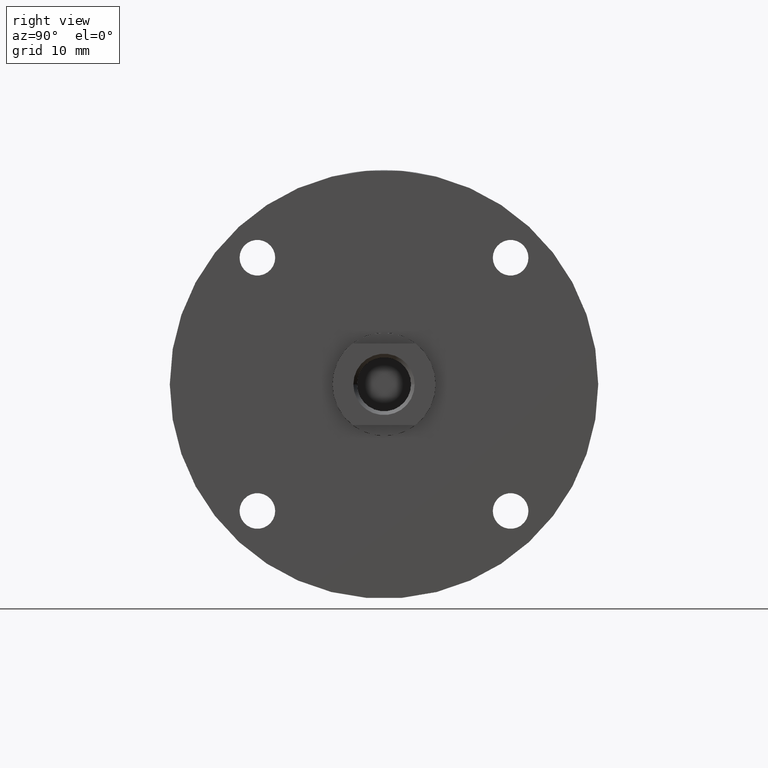
[diagram: clean part render]
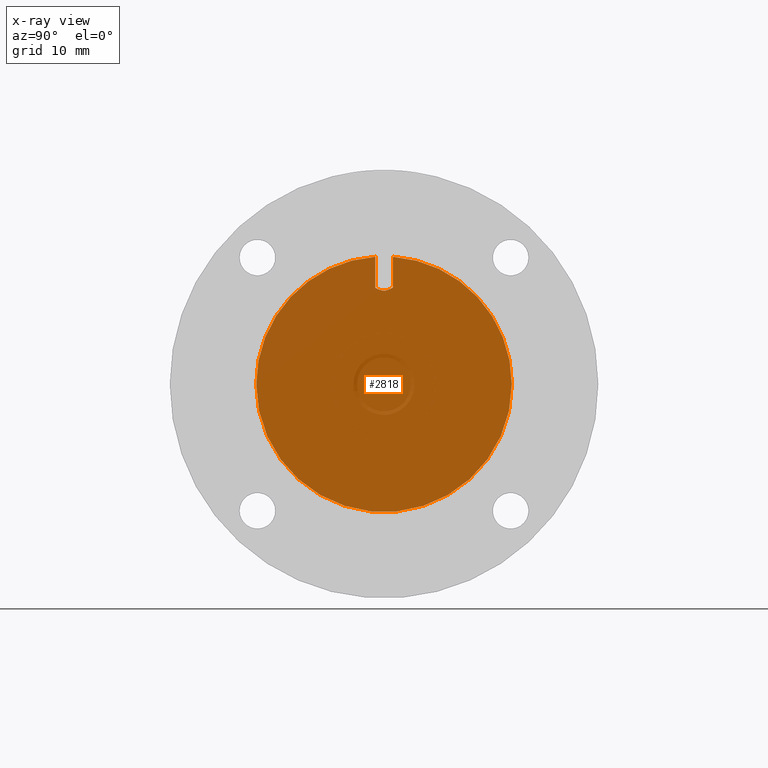
[diagram: x-ray — body ghosted, one internal face saturated and labeled with its STEP entity id]
A machine part, right view, then the same camera in x-ray: the body is ghosted and one INTERNAL B-rep face — a face not visible from any outside direction — is saturated and labeled: STEP entity #2818.
In plain terms, the highlighted planar face has unit normal (-1, 0, 0).
Its self-contained STEP definition (entity closure, byte-faithful):
#14 = CARTESIAN_POINT ( 'NONE',  ( -0.5749833130714019400, 0.2180000000000002800, -0.01878227312323443200 ) ) ;
#181 = ORIENTED_EDGE ( 'NONE', *, *, #2617, .T. ) ;
#241 = EDGE_CURVE ( 'NONE', #3893, #3912, #3340, .T. ) ;
#246 = CARTESIAN_POINT ( 'NONE',  ( 0.0000000000000000000, 0.2180000000000002500, 0.0000000000000000000 ) ) ;
#363 = CARTESIAN_POINT ( 'NONE',  ( -0.5857732779925241000, 0.2180000000000001700, -0.04516386490676493200 ) ) ;
#536 = CIRCLE ( 'NONE', #1732, 0.7815000000000006400 ) ;
#554 = CARTESIAN_POINT ( 'NONE',  ( 0.0000000000000000000, 0.2180000000000002500, 0.0000000000000000000 ) ) ;
#603 = DIRECTION ( 'NONE',  ( 0.0000000000000000000, 0.0000000000000000000, -1.000000000000000000 ) ) ;
#661 = VERTEX_POINT ( 'NONE', #962 ) ;
#700 = CARTESIAN_POINT ( 'NONE',  ( -0.5539156081756300100, 0.2180000000000002500, 0.05368659050452938300 ) ) ;
#912 = DIRECTION ( 'NONE',  ( 0.0000000000000000000, 0.0000000000000000000, -1.000000000000000000 ) ) ;
#962 = CARTESIAN_POINT ( 'NONE',  ( 0.0000000000000000000, 0.2180000000000002500, -0.7815000000000006400 ) ) ;
#979 = LINE ( 'NONE', #2511, #2743 ) ;
#1009 = ORIENTED_EDGE ( 'NONE', *, *, #3448, .T. ) ;
#1055 = CARTESIAN_POINT ( 'NONE',  ( -0.5899999999999860900, 0.2180000000000002500, 0.05368659050452938300 ) ) ;
#1062 = DIRECTION ( 'NONE',  ( 1.000000000000000000, -0.0000000000000000000, -0.0000000000000000000 ) ) ;
#1161 = AXIS2_PLACEMENT_3D ( 'NONE', #246, #2718, #603 ) ;
#1413 = CARTESIAN_POINT ( 'NONE',  ( -0.5766882621567006600, 0.2180000000000002800, 0.02330416172909008000 ) ) ;
#1417 = AXIS2_PLACEMENT_3D ( 'NONE', #2843, #3569, #1437 ) ;
#1437 = DIRECTION ( 'NONE',  ( 0.0000000000000000000, -0.0000000000000000000, 1.000000000000000000 ) ) ;
#1653 = EDGE_CURVE ( 'NONE', #4194, #1734, #2345, .T. ) ;
#1677 = CARTESIAN_POINT ( 'NONE',  ( 0.0000000000000000000, 0.2180000000000002500, 0.0000000000000000000 ) ) ;
#1732 = AXIS2_PLACEMENT_3D ( 'NONE', #1677, #4161, #2042 ) ;
#1734 = VERTEX_POINT ( 'NONE', #4181 ) ;
#1764 = CARTESIAN_POINT ( 'NONE',  ( -0.5730389085142295600, 0.2180000000000002500, 0.009534310829300410300 ) ) ;
#1772 = PLANE ( 'NONE',  #1417 ) ;
#2017 = FACE_OUTER_BOUND ( 'NONE', #2394, .T. ) ;
#2042 = DIRECTION ( 'NONE',  ( 0.0000000000000000000, 0.0000000000000000000, -1.000000000000000000 ) ) ;
#2107 = CARTESIAN_POINT ( 'NONE',  ( -0.5857952515446268600, 0.2180000000000002800, 0.04520817218664924300 ) ) ;
#2121 = CARTESIAN_POINT ( 'NONE',  ( -0.5723896163112379700, 0.2180000000000003000, -0.009527251001177027700 ) ) ;
#2138 = VECTOR ( 'NONE', #1062, 39.37007874015748100 ) ;
#2162 = ORIENTED_EDGE ( 'NONE', *, *, #4538, .T. ) ;
#2204 = CARTESIAN_POINT ( 'NONE',  ( -0.7796537693104549400, 0.2180000000000002500, -0.05368659050452938300 ) ) ;
#2247 = LINE ( 'NONE', #700, #2138 ) ;
#2325 = ORIENTED_EDGE ( 'NONE', *, *, #241, .T. ) ;
#2345 = CIRCLE ( 'NONE', #4487, 0.7815000000000006400 ) ;
#2394 = EDGE_LOOP ( 'NONE', ( #2162, #181, #1009, #2662, #2549, #2325 ) ) ;
#2478 = CARTESIAN_POINT ( 'NONE',  ( -0.5816990560355762600, 0.2180000000000002500, -0.03656486209339283200 ) ) ;
#2511 = CARTESIAN_POINT ( 'NONE',  ( -0.5539156081756300100, 0.2180000000000002500, -0.05368659050452938300 ) ) ;
#2549 = ORIENTED_EDGE ( 'NONE', *, *, #2786, .T. ) ;
#2617 = EDGE_CURVE ( 'NONE', #3588, #661, #536, .T. ) ;
#2662 = ORIENTED_EDGE ( 'NONE', *, *, #1653, .T. ) ;
#2718 = DIRECTION ( 'NONE',  ( -0.0000000000000000000, -1.000000000000000000, -0.0000000000000000000 ) ) ;
#2743 = VECTOR ( 'NONE', #2866, 39.37007874015748100 ) ;
#2786 = EDGE_CURVE ( 'NONE', #1734, #3893, #2247, .T. ) ;
#2816 = CARTESIAN_POINT ( 'NONE',  ( -0.5817387512894295300, 0.2180000000000002200, 0.03665504687865275100 ) ) ;
#2818 = ADVANCED_FACE ( 'PLANAR_6', ( #2017 ), #1772, .F. ) ;
#2830 = CARTESIAN_POINT ( 'NONE',  ( -0.5899999999999860900, 0.2180000000000002500, -0.05368659050452938300 ) ) ;
#2843 = CARTESIAN_POINT ( 'NONE',  ( 0.0000000000000000000, 0.2180000000000002500, 0.0000000000000000000 ) ) ;
#2866 = DIRECTION ( 'NONE',  ( -1.000000000000000000, 0.0000000000000000000, 0.0000000000000000000 ) ) ;
#3032 = DIRECTION ( 'NONE',  ( -0.0000000000000000000, -1.000000000000000000, -0.0000000000000000000 ) ) ;
#3340 = B_SPLINE_CURVE_WITH_KNOTS ( 'NONE', 3,
 ( #3549, #2107, #2816, #1413, #3903, #1764, #4250, #2121, #14, #2478, #363, #2830 ),
 .UNSPECIFIED., .F., .F.,
 ( 4, 2, 2, 2, 2, 4 ),
 ( 0.001772613536724660100, 0.002493740244257135300, 0.002854303598023373800, 0.003214866951789612700, 0.003935993659322088700, 0.004657120366854566500 ),
 .UNSPECIFIED. ) ;
#3448 = EDGE_CURVE ( 'NONE', #661, #4194, #4228, .T. ) ;
#3549 = CARTESIAN_POINT ( 'NONE',  ( -0.5899999999999860900, 0.2180000000000002500, 0.05368659050452938300 ) ) ;
#3569 = DIRECTION ( 'NONE',  ( 0.0000000000000000000, 1.000000000000000000, 0.0000000000000000000 ) ) ;
#3588 = VERTEX_POINT ( 'NONE', #2204 ) ;
#3893 = VERTEX_POINT ( 'NONE', #1055 ) ;
#3903 = CARTESIAN_POINT ( 'NONE',  ( -0.5751927871257237500, 0.2180000000000003000, 0.01876049753316223400 ) ) ;
#3904 = CARTESIAN_POINT ( 'NONE',  ( -0.5899999999999860900, 0.2180000000000002500, -0.05368659050452938300 ) ) ;
#3912 = VERTEX_POINT ( 'NONE', #3904 ) ;
#4161 = DIRECTION ( 'NONE',  ( -0.0000000000000000000, -1.000000000000000000, -0.0000000000000000000 ) ) ;
#4181 = CARTESIAN_POINT ( 'NONE',  ( -0.7796537693104549400, 0.2180000000000002500, 0.05368659050452938300 ) ) ;
#4194 = VERTEX_POINT ( 'NONE', #4373 ) ;
#4228 = CIRCLE ( 'NONE', #1161, 0.7815000000000006400 ) ;
#4250 = CARTESIAN_POINT ( 'NONE',  ( -0.5723914176884459200, 0.2180000000000002500, 0.004774097498544892600 ) ) ;
#4373 = CARTESIAN_POINT ( 'NONE',  ( 9.570614735336573100E-017, 0.2180000000000002500, 0.7815000000000006400 ) ) ;
#4487 = AXIS2_PLACEMENT_3D ( 'NONE', #554, #3032, #912 ) ;
#4538 = EDGE_CURVE ( 'NONE', #3912, #3588, #979, .T. ) ;